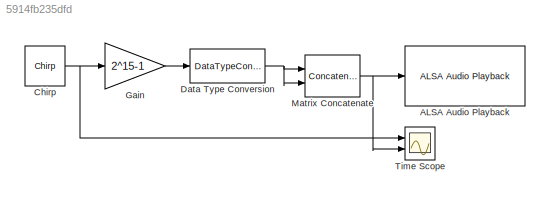
MODEL slx_5914fb235dfd
KIND model
CONFIG AbsTol = auto
CONFIG FixedStep = auto
CONFIG MaxStep = auto
CONFIG MinStep = auto
CONFIG RelTol = 1e-3
CONFIG SampleTimeConstraint = Unconstrained
CONFIG Solver = FixedStepDiscrete
CONFIG SolverMode = SingleTasking
CONFIG SolverName = FixedStepDiscrete
CONFIG StartTime = 0.0
CONFIG StopTime = inf
BLOCK [Reference] ALSA Audio Playback  REF=embdlinuxlib/ALSA Audio Playback
  Ports = [1]
  SourceBlock = embdlinuxlib/ALSA Audio Playback
  SourceType = ALSA Audio Playback
BLOCK [Reference] Chirp  REF=dspsrcs4/Chirp
  Ports = [0, 1]
  SourceBlock = dspsrcs4/Chirp
  SourceType = Chirp
BLOCK [DataTypeConversion] Data Type Conversion
  OutDataTypeStr = int16
  RndMeth = Floor
  SaturateOnIntegerOverflow = off
BLOCK [Gain] Gain
  Gain = 2^15-1
  OutDataTypeStr = Inherit: Inherit via internal rule
  ParamDataTypeStr = Inherit: Inherit via internal rule
  SaturateOnIntegerOverflow = off
BLOCK [Concatenate] Matrix Concatenate
  ConcatenateDimension = 2
  Mode = Multidimensional array
  Ports = [2, 1]
BLOCK [Scope] Time Scope
  DefaultConfigurationName = spbscopes.TimeScopeBlockCfg
  NumInputPorts = 2
  Ports = [2]
  ScopeSpecificationString = spbscopes.TimeScopeBlockCfg('CurrentConfiguration', extmgr.ConfigurationSet(extmgr.Configuration('Core','General UI',true),extmgr.Configuration('Core','Source UI',true),extmgr.Configuration('Sources','WiredSimulink',true),extmgr.Configuration('Visuals','Time Domain',true,'DisplayLayoutDimensions',[2 1],'DisplayPropertyDefaults',struct('YLabelReal','Amplitude','LegendVisibility','Off','XGrid',true,...<+2089ch>
  UserDataPersistent = on
NET Chirp:1 -> Gain:1, Time Scope:1
NET Data Type Conversion:1 -> Matrix Concatenate:1, Matrix Concatenate:2
LINE Gain:1 -> Data Type Conversion:1
NET Matrix Concatenate:1 -> ALSA Audio Playback:1, Time Scope:2
note: NET lines group one-source signal fan-out (src -> all destinations, sorted); 1:1 wires keep LINE
